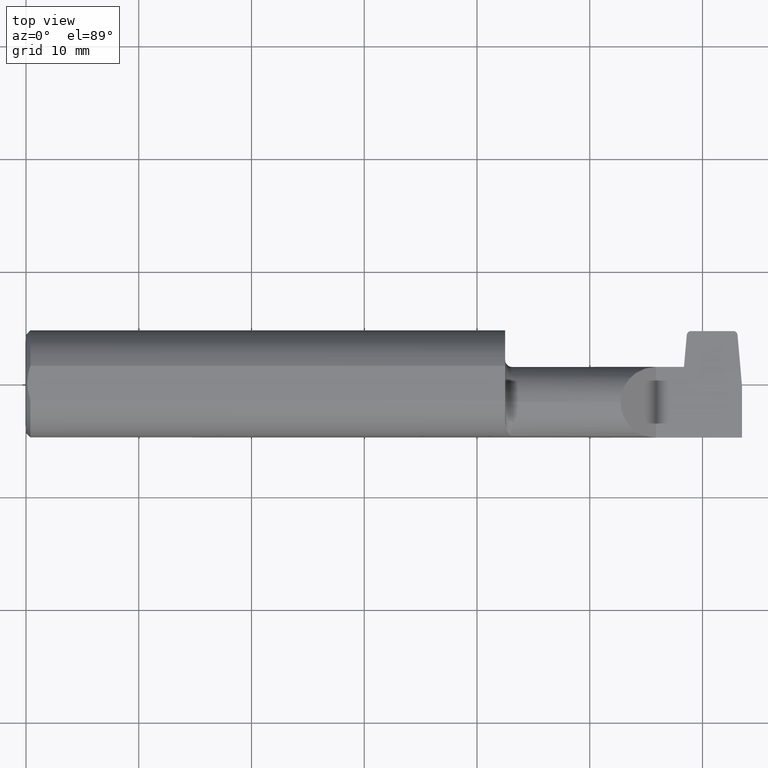
[diagram: clean part render]
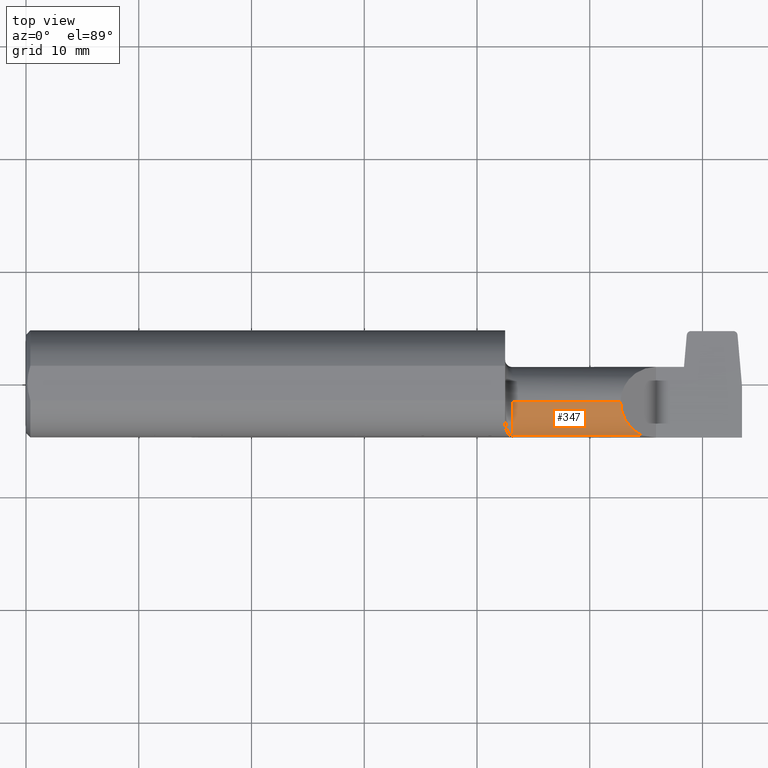
[diagram: same view with one face highlighted and labeled with its STEP entity id]
A machine part, top view. The second image highlights one B-rep face of the part: STEP entity #347.
In plain terms, the highlighted cylindrical surface (edge-blend (fillet) strip) has radius 3.175 mm, axis along (-1, -0, -0).
Its self-contained STEP definition (entity closure, byte-faithful):
#9 = ORIENTED_EDGE ( 'NONE', *, *, #556, .T. ) ;
#25 = CARTESIAN_POINT ( 'NONE',  ( 1.697999999999999954, -0.06535000000000003306, 0.1249999999999999584 ) ) ;
#36 = CARTESIAN_POINT ( 'NONE',  ( 2.076349999999999252, -0.06535000000000003306, 0.1249999999999999584 ) ) ;
#55 = DIRECTION ( 'NONE',  ( -1.000000000000000000, -0.000000000000000000, -0.000000000000000000 ) ) ;
#121 = VERTEX_POINT ( 'NONE', #25 ) ;
#125 = VERTEX_POINT ( 'NONE', #169 ) ;
#134 = LINE ( 'NONE', #278, #977 ) ;
#139 = CARTESIAN_POINT ( 'NONE',  ( 1.673000000000000265, -0.06535000000000003306, 0.000000000000000000 ) ) ;
#169 = CARTESIAN_POINT ( 'NONE',  ( 2.076349999999999252, -0.06535000000000003306, 0.1249999999999999584 ) ) ;
#170 = EDGE_LOOP ( 'NONE', ( #831, #521, #9, #325 ) ) ;
#179 = LINE ( 'NONE', #259, #511 ) ;
#193 = CARTESIAN_POINT ( 'NONE',  ( 2.106227264736975080, -0.1622637096011580737, 0.09512273526302454651 ) ) ;
#200 = DIRECTION ( 'NONE',  ( 0.000000000000000000, 0.000000000000000000, -1.000000000000000000 ) ) ;
#229 = DIRECTION ( 'NONE',  ( 0.000000000000000000, 0.000000000000000000, 1.000000000000000000 ) ) ;
#237 = EDGE_CURVE ( 'NONE', #125, #121, #134, .T. ) ;
#259 = CARTESIAN_POINT ( 'NONE',  ( 1.985000000000000320, -0.1816805279265493456, 0.04574066322573741572 ) ) ;
#278 = CARTESIAN_POINT ( 'NONE',  ( 1.673000000000000265, -0.06535000000000003306, 0.1249999999999999584 ) ) ;
#282 = CARTESIAN_POINT ( 'NONE',  ( 1.697999999999999954, -0.06535000000000003306, 0.000000000000000000 ) ) ;
#302 = FACE_OUTER_BOUND ( 'NONE', #170, .T. ) ;
#325 = ORIENTED_EDGE ( 'NONE', *, *, #846, .T. ) ;
#347 = ADVANCED_FACE ( 'NONE', ( #302 ), #549, .T. ) ;
#348 = CIRCLE ( 'NONE', #650, 0.1249999999999999584 ) ;
#355 = VERTEX_POINT ( 'NONE', #711 ) ;
#381 = VERTEX_POINT ( 'NONE', #959 ) ;
#494 = AXIS2_PLACEMENT_3D ( 'NONE', #139, #610, #229 ) ;
#511 = VECTOR ( 'NONE', #702, 39.37007874015748143 ) ;
#513 = CARTESIAN_POINT ( 'NONE',  ( 2.155609336774261919, -0.1816805279265492068, 0.04574066322573761695 ) ) ;
#521 = ORIENTED_EDGE ( 'NONE', *, *, #237, .T. ) ;
#549 = CYLINDRICAL_SURFACE ( 'NONE', #494, 0.1249999999999999584 ) ;
#556 = EDGE_CURVE ( 'NONE', #121, #381, #348, .T. ) ;
#610 = DIRECTION ( 'NONE',  ( -1.000000000000000000, -0.000000000000000000, -0.000000000000000000 ) ) ;
#650 = AXIS2_PLACEMENT_3D ( 'NONE', #282, #662, #200 ) ;
#662 = DIRECTION ( 'NONE',  ( 1.000000000000000000, 0.000000000000000000, 0.000000000000000000 ) ) ;
#702 = DIRECTION ( 'NONE',  ( 1.000000000000000000, 0.000000000000000000, 0.000000000000000000 ) ) ;
#711 = CARTESIAN_POINT ( 'NONE',  ( 2.155609336774261919, -0.1816805279265492068, 0.04574066322573761695 ) ) ;
#831 = ORIENTED_EDGE ( 'NONE', *, *, #967, .F. ) ;
#846 = EDGE_CURVE ( 'NONE', #381, #355, #179, .T. ) ;
#901 = CARTESIAN_POINT ( 'NONE',  ( 2.076349999999999252, -0.1184122452651323182, 0.1250000000000000000 ) ) ;
#959 = CARTESIAN_POINT ( 'NONE',  ( 1.697999999999999954, -0.1816805279265493456, 0.04574066322573741572 ) ) ;
#967 = EDGE_CURVE ( 'NONE', #125, #355, #991, .T. ) ;
#977 = VECTOR ( 'NONE', #55, 39.37007874015748143 ) ;
#991 =( BOUNDED_CURVE ( )  B_SPLINE_CURVE ( 3, ( #36, #901, #193, #513 ),
 .UNSPECIFIED., .F., .T. ) 
 B_SPLINE_CURVE_WITH_KNOTS ( ( 4, 4 ),
 ( 0.000000000000000000, 1.196169454089148321 ),
 .UNSPECIFIED. ) 
 CURVE ( )  GEOMETRIC_REPRESENTATION_ITEM ( )  RATIONAL_B_SPLINE_CURVE ( ( 1.000000000000000000, 0.8842770299537372480, 0.8842770299537372480, 1.000000000000000000 ) ) 
 REPRESENTATION_ITEM ( '' )  );